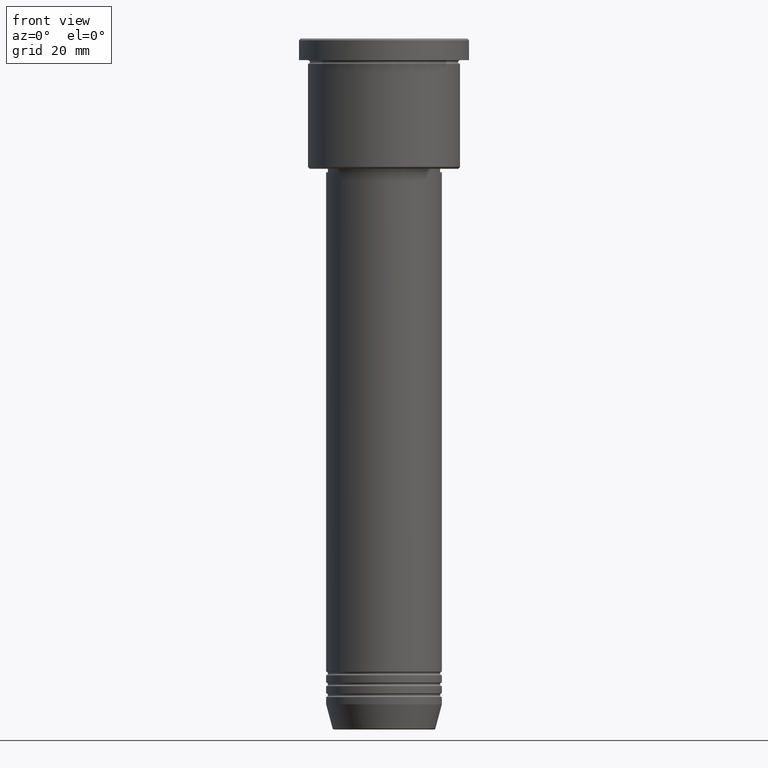
[diagram: clean part render]
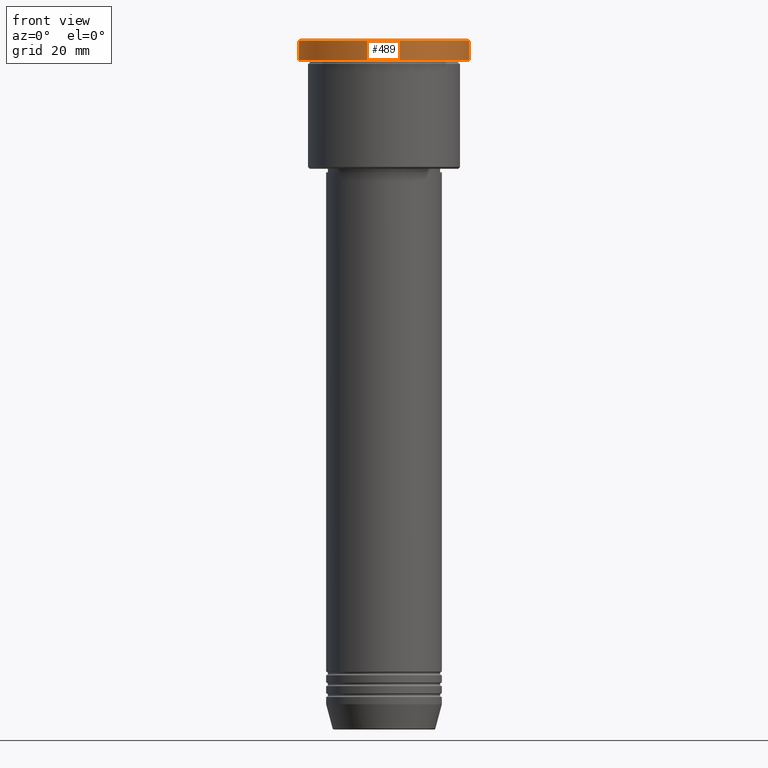
[diagram: same view with one face highlighted and labeled with its STEP entity id]
A machine part, front view. The second image highlights one B-rep face of the part: STEP entity #489.
In plain terms, the highlighted cylindrical surface (partial cylindrical patch) has radius 23.5 mm, axis along (-0, -0, 1).
Its self-contained STEP definition (entity closure, byte-faithful):
#51 = CARTESIAN_POINT ( 'NONE',  ( -23.50000000000000000, 2.877919977996280320E-15, 0.000000000000000000 ) ) ;
#66 = CIRCLE ( 'NONE', #303, 23.50000000000000000 ) ;
#96 = DIRECTION ( 'NONE',  ( -0.000000000000000000, -0.000000000000000000, 1.000000000000000000 ) ) ;
#180 = VERTEX_POINT ( 'NONE', #817 ) ;
#227 = EDGE_CURVE ( 'NONE', #180, #264, #729, .T. ) ;
#241 = DIRECTION ( 'NONE',  ( 1.000000000000000000, 0.000000000000000000, 0.000000000000000000 ) ) ;
#264 = VERTEX_POINT ( 'NONE', #360 ) ;
#283 = VECTOR ( 'NONE', #638, 1000.000000000000000 ) ;
#287 = ORIENTED_EDGE ( 'NONE', *, *, #724, .T. ) ;
#303 = AXIS2_PLACEMENT_3D ( 'NONE', #1084, #891, #543 ) ;
#327 = CARTESIAN_POINT ( 'NONE',  ( 23.50000000000000000, 0.000000000000000000, -5.999999999999994671 ) ) ;
#360 = CARTESIAN_POINT ( 'NONE',  ( -23.50000000000000000, 2.877919977996280320E-15, -0.5000000000000281997 ) ) ;
#473 = VECTOR ( 'NONE', #96, 1000.000000000000000 ) ;
#489 = ADVANCED_FACE ( 'NONE', ( #868 ), #1045, .T. ) ;
#543 = DIRECTION ( 'NONE',  ( 1.000000000000000000, 0.000000000000000000, 0.000000000000000000 ) ) ;
#551 = AXIS2_PLACEMENT_3D ( 'NONE', #1132, #589, #947 ) ;
#561 = EDGE_LOOP ( 'NONE', ( #1066, #704, #287, #1083 ) ) ;
#589 = DIRECTION ( 'NONE',  ( -0.000000000000000000, -0.000000000000000000, 1.000000000000000000 ) ) ;
#638 = DIRECTION ( 'NONE',  ( -0.000000000000000000, -0.000000000000000000, 1.000000000000000000 ) ) ;
#686 = EDGE_CURVE ( 'NONE', #180, #983, #66, .T. ) ;
#704 = ORIENTED_EDGE ( 'NONE', *, *, #686, .T. ) ;
#717 = AXIS2_PLACEMENT_3D ( 'NONE', #988, #1168, #241 ) ;
#724 = EDGE_CURVE ( 'NONE', #983, #792, #1179, .T. ) ;
#729 = LINE ( 'NONE', #51, #473 ) ;
#792 = VERTEX_POINT ( 'NONE', #1017 ) ;
#817 = CARTESIAN_POINT ( 'NONE',  ( -23.50000000000000000, 2.877919977996280320E-15, -5.999999999999994671 ) ) ;
#868 = FACE_OUTER_BOUND ( 'NONE', #561, .T. ) ;
#891 = DIRECTION ( 'NONE',  ( -0.000000000000000000, -0.000000000000000000, 1.000000000000000000 ) ) ;
#947 = DIRECTION ( 'NONE',  ( 1.000000000000000000, 0.000000000000000000, 0.000000000000000000 ) ) ;
#983 = VERTEX_POINT ( 'NONE', #327 ) ;
#985 = CARTESIAN_POINT ( 'NONE',  ( 23.50000000000000000, 0.000000000000000000, 0.000000000000000000 ) ) ;
#988 = CARTESIAN_POINT ( 'NONE',  ( 0.000000000000000000, 0.000000000000000000, -0.5000000000000281997 ) ) ;
#1017 = CARTESIAN_POINT ( 'NONE',  ( 23.50000000000000000, 0.000000000000000000, -0.5000000000000281997 ) ) ;
#1045 = CYLINDRICAL_SURFACE ( 'NONE', #551, 23.50000000000000000 ) ;
#1046 = EDGE_CURVE ( 'NONE', #792, #264, #1071, .T. ) ;
#1066 = ORIENTED_EDGE ( 'NONE', *, *, #227, .F. ) ;
#1071 = CIRCLE ( 'NONE', #717, 23.50000000000000000 ) ;
#1083 = ORIENTED_EDGE ( 'NONE', *, *, #1046, .T. ) ;
#1084 = CARTESIAN_POINT ( 'NONE',  ( 0.000000000000000000, 0.000000000000000000, -5.999999999999994671 ) ) ;
#1132 = CARTESIAN_POINT ( 'NONE',  ( 0.000000000000000000, 0.000000000000000000, 0.000000000000000000 ) ) ;
#1168 = DIRECTION ( 'NONE',  ( 0.000000000000000000, 0.000000000000000000, -1.000000000000000000 ) ) ;
#1179 = LINE ( 'NONE', #985, #283 ) ;